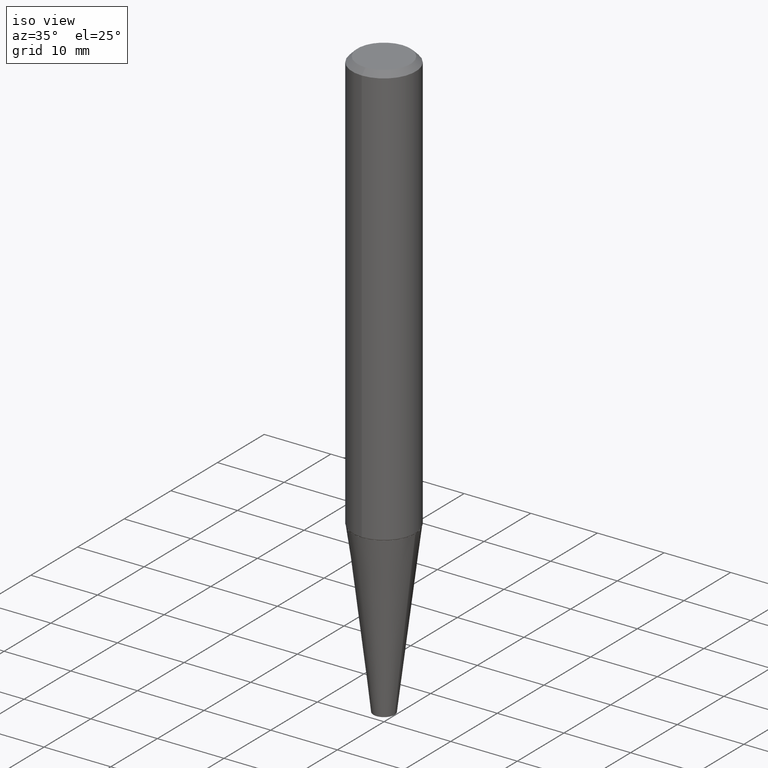
[diagram: clean part render]
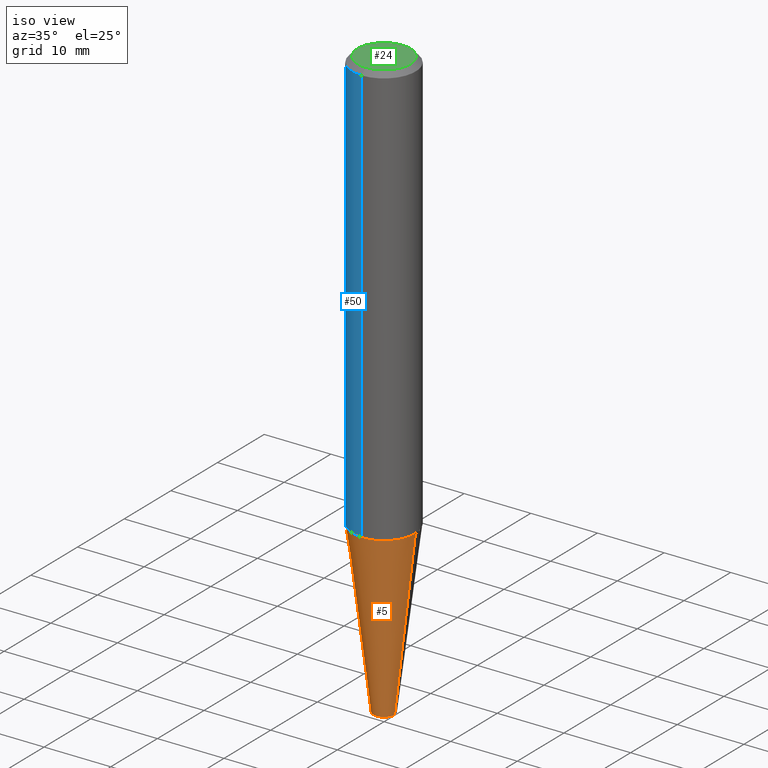
[diagram: same view with three faces highlighted in distinct colors, each labeled with its STEP entity id]
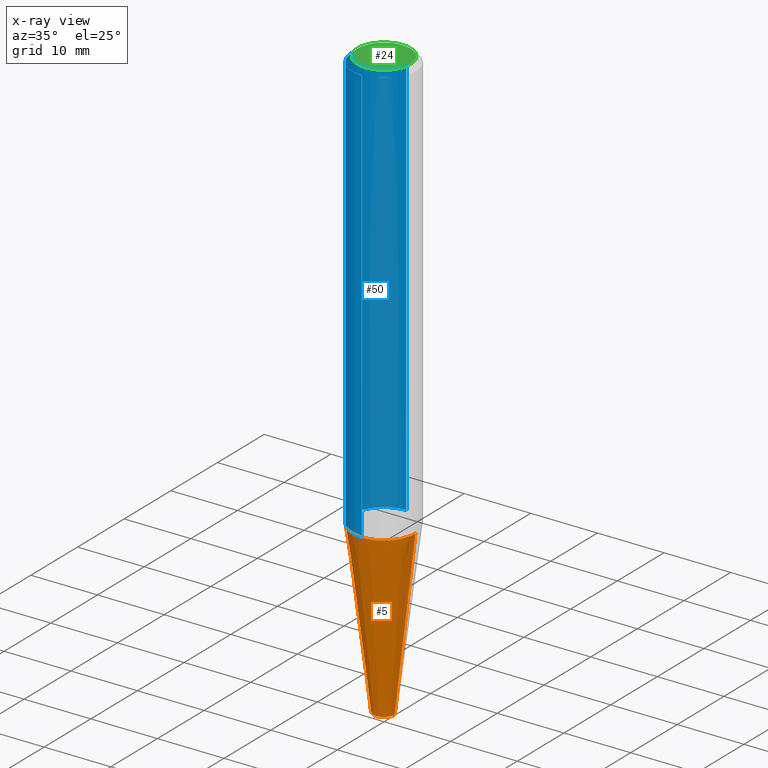
[diagram: x-ray of the same camera — body ghosted, the three highlighted faces saturated]
A machine part, iso view with three faces highlighted in distinct colors.
The next image is the same camera in x-ray (body ghosted, the three faces saturated) — at least one of them is partly hidden behind the body in this view.
Their STEP definitions:

[orange] entity #5 — the highlighted conical surface has half-angle 7 deg.
#5 = ADVANCED_FACE ( 'NONE', ( #218 ), #158, .T. ) ;
#29 = CARTESIAN_POINT ( 'NONE',  ( 0.1852845609028975771, -1.002253852064428481E-14, -2.500000000000000000 ) ) ;
#47 = ORIENTED_EDGE ( 'NONE', *, *, #298, .T. ) ;
#48 = AXIS2_PLACEMENT_3D ( 'NONE', #197, #318, #266 ) ;
#57 = EDGE_CURVE ( 'NONE', #247, #274, #381, .T. ) ;
#58 = LINE ( 'NONE', #92, #159 ) ;
#92 = CARTESIAN_POINT ( 'NONE',  ( 0.06250000000000000000, -1.265661985330639943E-14, -3.500000000000000000 ) ) ;
#157 = CARTESIAN_POINT ( 'NONE',  ( 0.06250000000000000000, -1.265661985330639943E-14, -3.500000000000000000 ) ) ;
#158 = CONICAL_SURFACE ( 'NONE', #401, 0.06250000000000000000, 0.1221730476395961884 ) ;
#159 = VECTOR ( 'NONE', #285, 39.37007874015748854 ) ;
#183 = ORIENTED_EDGE ( 'NONE', *, *, #286, .F. ) ;
#184 = EDGE_CURVE ( 'NONE', #260, #398, #396, .T. ) ;
#197 = CARTESIAN_POINT ( 'NONE',  ( 8.559140821647976968E-29, -1.222018468595100934E-14, -3.500000000000000000 ) ) ;
#199 = DIRECTION ( 'NONE',  ( 1.000000000000000000, -6.982962677686262766E-15, 0.000000000000000000 ) ) ;
#207 = AXIS2_PLACEMENT_3D ( 'NONE', #369, #258, #338 ) ;
#218 = FACE_OUTER_BOUND ( 'NONE', #278, .T. ) ;
#234 = DIRECTION ( 'NONE',  ( -2.445468806185136597E-29, 3.491481338843145583E-15, 1.000000000000000000 ) ) ;
#247 = VERTEX_POINT ( 'NONE', #340 ) ;
#258 = DIRECTION ( 'NONE',  ( -2.445468806185136597E-29, 3.491481338843145583E-15, 1.000000000000000000 ) ) ;
#260 = VERTEX_POINT ( 'NONE', #280 ) ;
#261 = DIRECTION ( 'NONE',  ( -0.1218693434051406344, 4.331390133080014653E-15, 0.9925461516413227603 ) ) ;
#266 = DIRECTION ( 'NONE',  ( 1.000000000000000000, -6.982962677686262766E-15, 0.000000000000000000 ) ) ;
#274 = VERTEX_POINT ( 'NONE', #29 ) ;
#278 = EDGE_LOOP ( 'NONE', ( #183, #303, #47, #403 ) ) ;
#280 = CARTESIAN_POINT ( 'NONE',  ( -0.06250000000000000000, -9.594136417614135936E-15, -3.500000000000000000 ) ) ;
#285 = DIRECTION ( 'NONE',  ( 0.1218693434051406344, 2.614447289844029388E-15, 0.9925461516413227603 ) ) ;
#286 = EDGE_CURVE ( 'NONE', #260, #247, #317, .T. ) ;
#298 = EDGE_CURVE ( 'NONE', #398, #274, #58, .T. ) ;
#303 = ORIENTED_EDGE ( 'NONE', *, *, #184, .T. ) ;
#317 = LINE ( 'NONE', #345, #382 ) ;
#318 = DIRECTION ( 'NONE',  ( -2.445468806185136597E-29, 3.491481338843145583E-15, 1.000000000000000000 ) ) ;
#338 = DIRECTION ( 'NONE',  ( 1.000000000000000000, -6.982962677686269866E-15, 0.000000000000000000 ) ) ;
#339 = CARTESIAN_POINT ( 'NONE',  ( 8.559140821647976968E-29, -1.222018468595100934E-14, -3.500000000000000000 ) ) ;
#340 = CARTESIAN_POINT ( 'NONE',  ( -0.1852845609028975771, -7.412177359127328301E-15, -2.500000000000000000 ) ) ;
#345 = CARTESIAN_POINT ( 'NONE',  ( -0.06250000000000000000, -1.177609547610094673E-14, -3.500000000000000000 ) ) ;
#369 = CARTESIAN_POINT ( 'NONE',  ( 6.113672015462842613E-29, -8.728703347107864943E-15, -2.500000000000000000 ) ) ;
#381 = CIRCLE ( 'NONE', #207, 0.1852845609028975771 ) ;
#382 = VECTOR ( 'NONE', #261, 39.37007874015748854 ) ;
#396 = CIRCLE ( 'NONE', #48, 0.06250000000000000000 ) ;
#398 = VERTEX_POINT ( 'NONE', #157 ) ;
#401 = AXIS2_PLACEMENT_3D ( 'NONE', #339, #234, #199 ) ;
#403 = ORIENTED_EDGE ( 'NONE', *, *, #57, .F. ) ;

[blue] entity #50 — the highlighted cylindrical surface (partial cylindrical patch) has radius 4.7625 mm, axis along (-0, 0, 1).
#12 = ORIENTED_EDGE ( 'NONE', *, *, #106, .T. ) ;
#19 = VERTEX_POINT ( 'NONE', #153 ) ;
#20 = CIRCLE ( 'NONE', #53, 0.1875000000000004718 ) ;
#46 = ORIENTED_EDGE ( 'NONE', *, *, #351, .F. ) ;
#50 = ADVANCED_FACE ( 'NONE', ( #194 ), #151, .T. ) ;
#53 = AXIS2_PLACEMENT_3D ( 'NONE', #160, #410, #87 ) ;
#85 = CARTESIAN_POINT ( 'NONE',  ( -1.309305502066179544E-15, -0.1875000000000006661, 6.320793669469502514E-16 ) ) ;
#86 = ORIENTED_EDGE ( 'NONE', *, *, #220, .T. ) ;
#87 = DIRECTION ( 'NONE',  ( -6.982962677686265922E-15, -1.000000000000000000, 3.278217592397107974E-15 ) ) ;
#106 = EDGE_CURVE ( 'NONE', #246, #19, #214, .T. ) ;
#112 = VERTEX_POINT ( 'NONE', #126 ) ;
#125 = CARTESIAN_POINT ( 'NONE',  ( 1.309305502066175600E-15, 0.1874999999999998890, -0.03125000000000069389 ) ) ;
#126 = CARTESIAN_POINT ( 'NONE',  ( 1.332267629550217234E-15, 0.1874999999999913125, -2.495248975524297474 ) ) ;
#148 = AXIS2_PLACEMENT_3D ( 'NONE', #224, #343, #377 ) ;
#151 = CYLINDRICAL_SURFACE ( 'NONE', #148, 0.1875000000000001943 ) ;
#153 = CARTESIAN_POINT ( 'NONE',  ( -1.286343374582167887E-15, -0.1875000000000010270, -0.03124999999999946571 ) ) ;
#160 = CARTESIAN_POINT ( 'NONE',  ( -2.585245049694732813E-30, -5.887696759404657318E-16, -0.03125000000000008327 ) ) ;
#194 = FACE_OUTER_BOUND ( 'NONE', #301, .T. ) ;
#210 = ORIENTED_EDGE ( 'NONE', *, *, #409, .F. ) ;
#214 = LINE ( 'NONE', #85, #237 ) ;
#216 = CIRCLE ( 'NONE', #353, 0.1874999999999999445 ) ;
#219 = DIRECTION ( 'NONE',  ( -2.600759612072551772E-29, 3.269096066208594988E-15, 1.000000000000000000 ) ) ;
#220 = EDGE_CURVE ( 'NONE', #112, #246, #216, .T. ) ;
#223 = LINE ( 'NONE', #283, #310 ) ;
#224 = CARTESIAN_POINT ( 'NONE',  ( -3.397982428467408395E-30, -4.866104238714468673E-16, 1.912385453283800096E-17 ) ) ;
#232 = CARTESIAN_POINT ( 'NONE',  ( 6.149744514762260827E-29, -8.643819033968951977E-15, -2.495248975524296586 ) ) ;
#237 = VECTOR ( 'NONE', #405, 39.37007874015748143 ) ;
#246 = VERTEX_POINT ( 'NONE', #337 ) ;
#283 = CARTESIAN_POINT ( 'NONE',  ( 1.332267629550185482E-15, 0.1874999999999996947, -5.938316578812741509E-16 ) ) ;
#301 = EDGE_LOOP ( 'NONE', ( #210, #86, #12, #46 ) ) ;
#310 = VECTOR ( 'NONE', #219, 39.37007874015748143 ) ;
#337 = CARTESIAN_POINT ( 'NONE',  ( -1.309305502066113083E-15, -0.1875000000000085765, -2.495248975524296142 ) ) ;
#343 = DIRECTION ( 'NONE',  ( -2.600759612072551772E-29, 3.269096066208594988E-15, 1.000000000000000000 ) ) ;
#350 = DIRECTION ( 'NONE',  ( -2.600759612072551772E-29, 3.269096066208594988E-15, 1.000000000000000000 ) ) ;
#351 = EDGE_CURVE ( 'NONE', #361, #19, #20, .T. ) ;
#353 = AXIS2_PLACEMENT_3D ( 'NONE', #232, #350, #406 ) ;
#361 = VERTEX_POINT ( 'NONE', #125 ) ;
#377 = DIRECTION ( 'NONE',  ( -6.982962677686265922E-15, -1.000000000000000000, 3.269096066208594988E-15 ) ) ;
#405 = DIRECTION ( 'NONE',  ( -2.600759612072551772E-29, 3.269096066208594988E-15, 1.000000000000000000 ) ) ;
#406 = DIRECTION ( 'NONE',  ( -6.982962677686266711E-15, -1.000000000000000000, 2.913971193241881555E-15 ) ) ;
#409 = EDGE_CURVE ( 'NONE', #112, #361, #223, .T. ) ;
#410 = DIRECTION ( 'NONE',  ( -2.600759612072551772E-29, 3.269096066208594988E-15, 1.000000000000000000 ) ) ;

[green] entity #24 — the highlighted planar face has unit normal (0, -0, -1).
#6 = CARTESIAN_POINT ( 'NONE',  ( -3.397982428467410497E-30, -4.866104238714464729E-16, 1.274557757746687313E-16 ) ) ;
#9 = AXIS2_PLACEMENT_3D ( 'NONE', #39, #200, #346 ) ;
#13 = ORIENTED_EDGE ( 'NONE', *, *, #150, .T. ) ;
#24 = ADVANCED_FACE ( 'NONE', ( #312 ), #254, .F. ) ;
#32 = CARTESIAN_POINT ( 'NONE',  ( 1.200196710227326894E-15, 0.1562499999999999167, -3.833404845704254927E-16 ) ) ;
#39 = CARTESIAN_POINT ( 'NONE',  ( -3.397982428467410497E-30, -4.866104238714464729E-16, 1.274557757746687313E-16 ) ) ;
#93 = ORIENTED_EDGE ( 'NONE', *, *, #129, .T. ) ;
#96 = DIRECTION ( 'NONE',  ( -2.600759612072551772E-29, 3.269096066208594988E-15, 1.000000000000000000 ) ) ;
#128 = AXIS2_PLACEMENT_3D ( 'NONE', #6, #96, #135 ) ;
#129 = EDGE_CURVE ( 'NONE', #371, #335, #175, .T. ) ;
#135 = DIRECTION ( 'NONE',  ( -6.982962677686265922E-15, -1.000000000000000000, 3.269096066208595382E-15 ) ) ;
#150 = EDGE_CURVE ( 'NONE', #335, #371, #360, .T. ) ;
#175 = CIRCLE ( 'NONE', #128, 0.1562500000000003886 ) ;
#200 = DIRECTION ( 'NONE',  ( -2.600759612072551772E-29, 3.269096066208594988E-15, 1.000000000000000000 ) ) ;
#228 = CARTESIAN_POINT ( 'NONE',  ( 1.091087918388478385E-15, 0.1562499999999999167, -4.375064451913409565E-16 ) ) ;
#248 = AXIS2_PLACEMENT_3D ( 'NONE', #228, #341, #281 ) ;
#254 = PLANE ( 'NONE',  #248 ) ;
#276 = EDGE_LOOP ( 'NONE', ( #13, #93 ) ) ;
#281 = DIRECTION ( 'NONE',  ( 6.982962677686265922E-15, 1.000000000000000000, -3.269096066208594988E-15 ) ) ;
#312 = FACE_OUTER_BOUND ( 'NONE', #276, .T. ) ;
#313 = CARTESIAN_POINT ( 'NONE',  ( -1.179148093366987707E-15, -0.1562500000000008604, 6.382520361197630047E-16 ) ) ;
#335 = VERTEX_POINT ( 'NONE', #32 ) ;
#341 = DIRECTION ( 'NONE',  ( 2.600759612072551772E-29, -3.269096066208594988E-15, -1.000000000000000000 ) ) ;
#346 = DIRECTION ( 'NONE',  ( -6.982962677686265922E-15, -1.000000000000000000, 3.269096066208595382E-15 ) ) ;
#360 = CIRCLE ( 'NONE', #9, 0.1562500000000003886 ) ;
#371 = VERTEX_POINT ( 'NONE', #313 ) ;